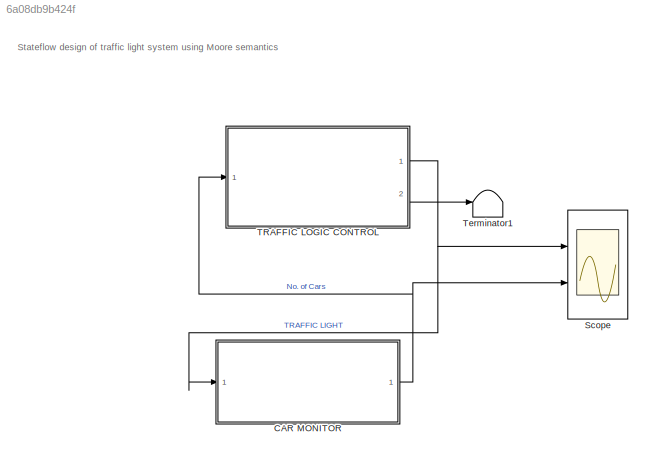
MODEL slx_6a08db9b424f
KIND model
CONFIG AbsTol = auto
CONFIG EnableMultiTasking = on
CONFIG FixedStep = 0.1
CONFIG MaxStep = auto
CONFIG MinStep = auto
CONFIG RelTol = 1e-3
CONFIG SampleTimeConstraint = Unconstrained
CONFIG SolverName = FixedStepDiscrete
CONFIG StartTime = 0.0
CONFIG StopTime = 150
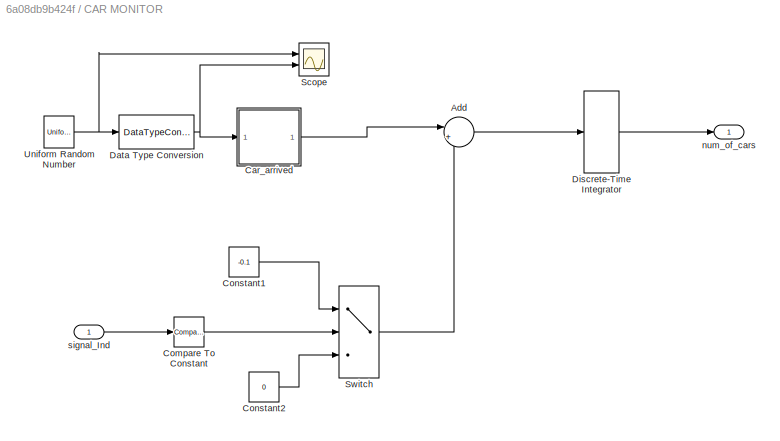
BLOCK [SubSystem] CAR MONITOR
  Ports = [1, 1]
  RequestExecContextInheritance = off
BLOCK [Sum] CAR MONITOR/Add
  Inputs = |++
  Ports = [2, 1]
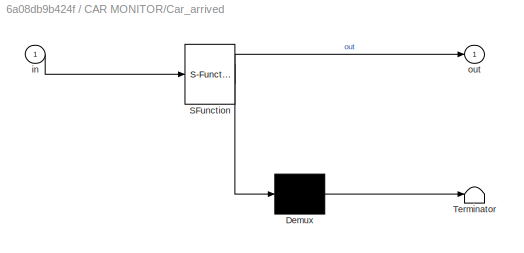
BLOCK [SubSystem] CAR MONITOR/Car_arrived
  ErrorFcn = Stateflow.Translate.translate
  PermitHierarchicalResolution = ExplicitOnly
  Ports = [1, 1]
  RequestExecContextInheritance = off
  SFBlockType = Chart
  TreatAsAtomicUnit = on
BLOCK [Demux] CAR MONITOR/Car_arrived/ Demux 
  Outputs = 1
  Ports = [1, 1]
BLOCK [S-Function] CAR MONITOR/Car_arrived/ SFunction 
  EnableBusSupport = on
  FunctionName = sf_sfun
  PortCounts = [1 2]
  Ports = [1, 2]
  SFcnIsStateOwnerBlock = off
  SFunctionDeploymentMode = off
  Tag = Stateflow S-Function 4
BLOCK [Terminator] CAR MONITOR/Car_arrived/ Terminator 
BLOCK [Inport] CAR MONITOR/Car_arrived/in
BLOCK [Outport] CAR MONITOR/Car_arrived/out
  VectorParamsAs1DForOutWhenUnconnected = off
BLOCK [Reference] CAR MONITOR/Compare To Constant  REF=simulink/Logic and Bit
Operations/Compare
To Constant
  Ports = [1, 1]
  SourceBlock = simulink/Logic and Bit\nOperations/Compare\nTo Constant
  SourceProductBaseCode = SL
  SourceType = Compare To Constant
BLOCK [Constant] CAR MONITOR/Constant1
  Value = -0.1
BLOCK [Constant] CAR MONITOR/Constant2
  Value = 0
BLOCK [DataTypeConversion] CAR MONITOR/Data Type Conversion
  RndMeth = Floor
  SaturateOnIntegerOverflow = off
BLOCK [DiscreteIntegrator] CAR MONITOR/Discrete-Time Integrator
  ICPrevOutput = DiscIntNeverNeededParam
  ICPrevScaledInput = DiscIntNeverNeededParam
  LimitOutput = on
  LowerSaturationLimit = 0
  Ports = [1, 1]
  SampleTime = -1
BLOCK [Scope] CAR MONITOR/Scope
  Floating = off
  NumInputPorts = 2
  Ports = [2]
  ScopeSpecificationString = Simulink.scopes.TimeScopeBlockCfg('CurrentConfiguration', extmgr.ConfigurationSet(extmgr.Configuration('Core','General UI',true),extmgr.Configuration('Core','Source UI',true),extmgr.Configuration('Sources','WiredSimulink',true,'DataLoggingVariableName','ScopeData1'),extmgr.Configuration('Visuals','Time Domain',true,'SerializedDisplays',{struct('MinYLimReal','-10.61533','MaxYLimReal','110.74416','Y...<+2379ch>
BLOCK [Switch] CAR MONITOR/Switch
  Criteria = u2 ~= 0
  InputSameDT = off
  SaturateOnIntegerOverflow = off
BLOCK [UniformRandomNumber] CAR MONITOR/Uniform Random Number
  Maximum = 100
  Minimum = 0
  SampleTime = 0
  Seed = 177836
BLOCK [Outport] CAR MONITOR/num_of_cars
  VectorParamsAs1DForOutWhenUnconnected = off
BLOCK [Inport] CAR MONITOR/signal_Ind
BLOCK [Scope] Scope
  Floating = off
  NumInputPorts = 2
  Ports = [2]
  ScopeSpecificationString = Simulink.scopes.TimeScopeBlockCfg('CurrentConfiguration', extmgr.ConfigurationSet(extmgr.Configuration('Core','General UI',true),extmgr.Configuration('Core','Source UI',true),extmgr.Configuration('Sources','WiredSimulink',true,'DataLoggingLimitDataPoints',true),extmgr.Configuration('Visuals','Time Domain',true,'SerializedDisplays',{struct('MinYLimReal','0.75','MaxYLimReal','3.25','YLabelReal','','...<+2010ch>
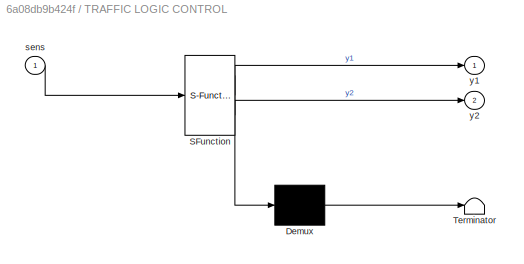
BLOCK [SubSystem] TRAFFIC LOGIC CONTROL
  ErrorFcn = Stateflow.Translate.translate
  PermitHierarchicalResolution = ExplicitOnly
  Ports = [1, 2]
  RequestExecContextInheritance = off
  SFBlockType = Chart
  TreatAsAtomicUnit = on
BLOCK [Demux] TRAFFIC LOGIC CONTROL/ Demux 
  Outputs = 1
  Ports = [1, 1]
BLOCK [S-Function] TRAFFIC LOGIC CONTROL/ SFunction 
  EnableBusSupport = on
  FunctionName = sf_sfun
  PortCounts = [1 3]
  Ports = [1, 3]
  SFcnIsStateOwnerBlock = off
  SFunctionDeploymentMode = off
  Tag = Stateflow S-Function 3
BLOCK [Terminator] TRAFFIC LOGIC CONTROL/ Terminator 
BLOCK [Inport] TRAFFIC LOGIC CONTROL/sens
BLOCK [Outport] TRAFFIC LOGIC CONTROL/y1
BLOCK [Outport] TRAFFIC LOGIC CONTROL/y2
  Port = 2
BLOCK [Terminator] Terminator1
ANNOTATION (root): Stateflow design of traffic light system using Moore semantics
LINE CAR MONITOR/Add:1 -> CAR MONITOR/Discrete-Time Integrator:1
LINE CAR MONITOR/Car_arrived:1 -> CAR MONITOR/Add:1
LINE CAR MONITOR/Compare To Constant:1 -> CAR MONITOR/Switch:2
LINE CAR MONITOR/Constant1:1 -> CAR MONITOR/Switch:1
LINE CAR MONITOR/Constant2:1 -> CAR MONITOR/Switch:3
NET CAR MONITOR/Data Type Conversion:1 -> CAR MONITOR/Car_arrived:1, CAR MONITOR/Scope:2
LINE CAR MONITOR/Discrete-Time Integrator:1 -> CAR MONITOR/num_of_cars:1
LINE CAR MONITOR/Switch:1 -> CAR MONITOR/Add:2
NET CAR MONITOR/Uniform Random Number:1 -> CAR MONITOR/Data Type Conversion:1, CAR MONITOR/Scope:1
LINE CAR MONITOR/signal_Ind:1 -> CAR MONITOR/Compare To Constant:1
NET CAR MONITOR:1 -> Scope:2, TRAFFIC LOGIC CONTROL:1
NET TRAFFIC LOGIC CONTROL:1 -> CAR MONITOR:1, Scope:1
LINE TRAFFIC LOGIC CONTROL:2 -> Terminator1:1
note: NET lines group one-source signal fan-out (src -> all destinations, sorted); 1:1 wires keep LINE
CHART TRAFFIC LOGIC CONTROL states=5 transitions=6
  STATE_LABEL 'Stop\ny1 = RED;\ny2 = GREEN;'
  STATE_LABEL 'StopForTraffic\ny1 = RED;\ny2 = GREEN;'
  STATE_LABEL 'StopToGo\ny1 = RED;\ny2 = YELLOW;'
  STATE_LABEL 'GoToStop\ny1 = YELLOW;\ny2 = RED;'
  STATE_LABEL 'Go\ny1 = GREEN;\ny2 = RED;'
CHART CAR MONITOR/Car_arrived states=0 transitions=1
CHART  states=0 transitions=0
CHART  states=0 transitions=0
